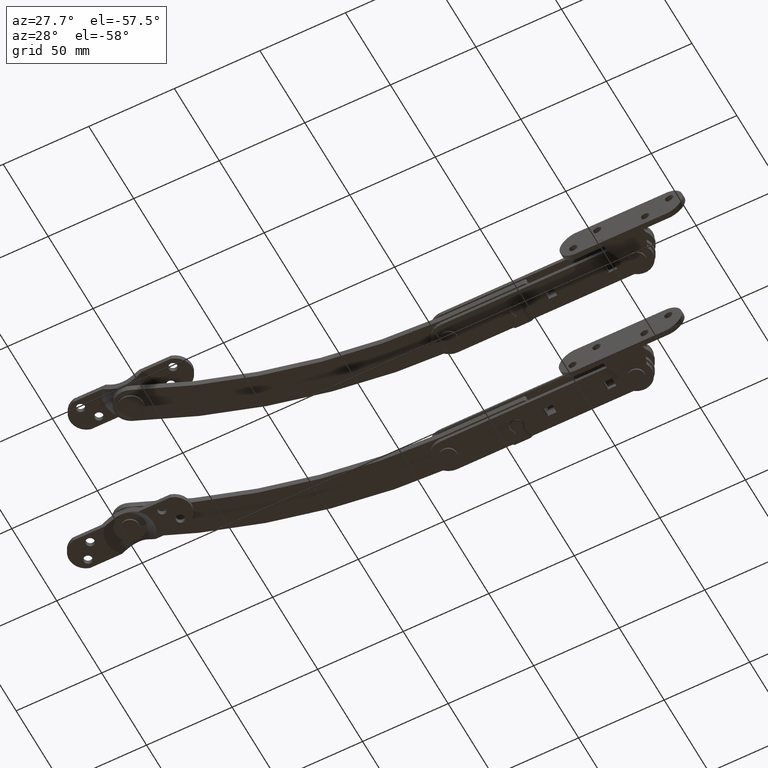
[diagram: clean part render]
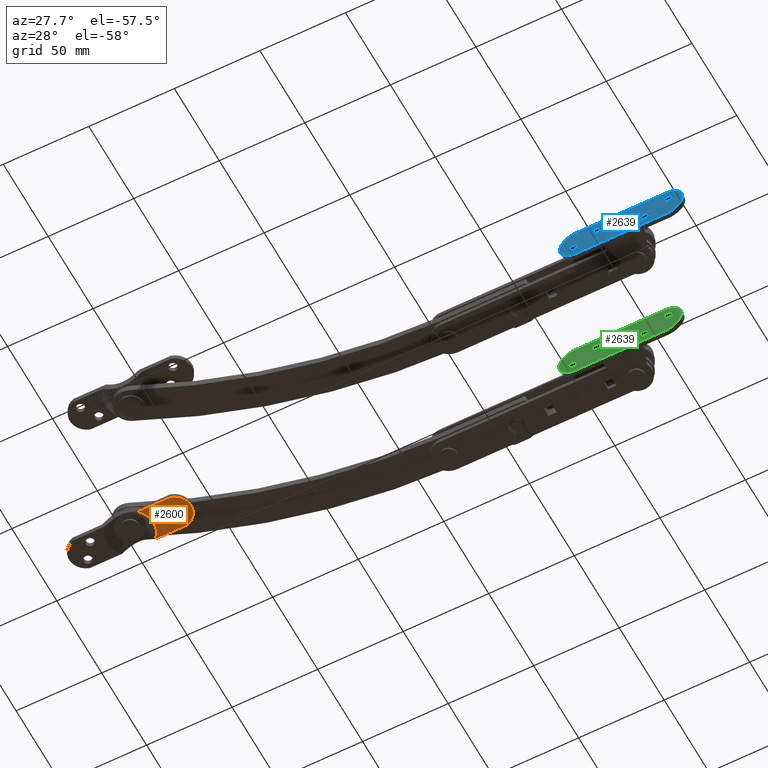
[diagram: same view with three faces highlighted in distinct colors, each labeled with its STEP entity id]
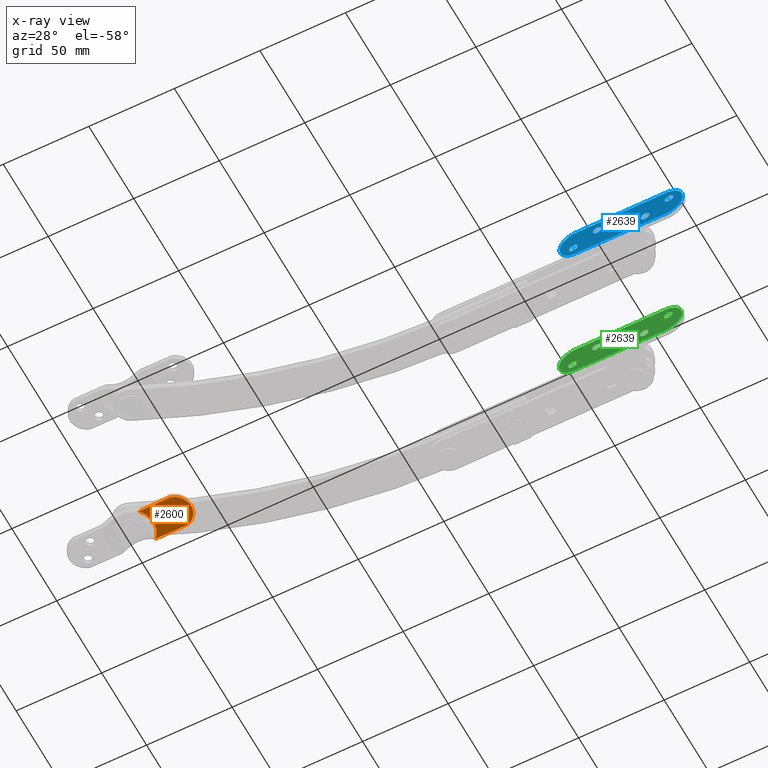
[diagram: x-ray of the same camera — body ghosted, the three highlighted faces saturated]
A machine part, auxiliary view with three faces highlighted in distinct colors.
The next image is the same camera in x-ray (body ghosted, the three faces saturated) — at least one of them is partly hidden behind the body in this view.
Their STEP definitions:

[orange] entity #2600 — the highlighted planar face has unit normal (0, -0, -1).
#207=FACE_BOUND('',#638,.T.);
#208=FACE_BOUND('',#639,.T.);
#317=PLANE('',#2840);
#446=FACE_OUTER_BOUND('',#637,.T.);
#637=EDGE_LOOP('',(#2232,#2233,#2234,#2235));
#638=EDGE_LOOP('',(#2236));
#639=EDGE_LOOP('',(#2237));
#850=LINE('',#4796,#1024);
#851=LINE('',#4799,#1025);
#1024=VECTOR('',#3444,18.6664894216499);
#1025=VECTOR('',#3447,18.6664894216499);
#1140=CIRCLE('',#2825,2.5);
#1142=CIRCLE('',#2828,2.5);
#1148=CIRCLE('',#2837,13.6728903416404);
#1150=CIRCLE('',#2841,9.86736111111111);
#1345=VERTEX_POINT('',#4758);
#1347=VERTEX_POINT('',#4763);
#1353=VERTEX_POINT('',#4777);
#1355=VERTEX_POINT('',#4783);
#1358=VERTEX_POINT('',#4795);
#1359=VERTEX_POINT('',#4797);
#1656=EDGE_CURVE('',#1345,#1345,#1140,.T.);
#1658=EDGE_CURVE('',#1347,#1347,#1142,.T.);
#1666=EDGE_CURVE('',#1353,#1355,#1148,.T.);
#1670=EDGE_CURVE('',#1358,#1355,#850,.T.);
#1671=EDGE_CURVE('',#1358,#1359,#1150,.T.);
#1672=EDGE_CURVE('',#1353,#1359,#851,.T.);
#2232=ORIENTED_EDGE('',*,*,#1666,.T.);
#2233=ORIENTED_EDGE('',*,*,#1670,.F.);
#2234=ORIENTED_EDGE('',*,*,#1671,.T.);
#2235=ORIENTED_EDGE('',*,*,#1672,.F.);
#2236=ORIENTED_EDGE('',*,*,#1656,.T.);
#2237=ORIENTED_EDGE('',*,*,#1658,.T.);
#2600=ADVANCED_FACE('',(#446,#207,#208),#317,.T.);
#2825=AXIS2_PLACEMENT_3D('',#4759,#3410,#3411);
#2828=AXIS2_PLACEMENT_3D('',#4764,#3416,#3417);
#2837=AXIS2_PLACEMENT_3D('',#4787,#3434,#3435);
#2840=AXIS2_PLACEMENT_3D('',#4794,#3442,#3443);
#2841=AXIS2_PLACEMENT_3D('',#4798,#3445,#3446);
#3410=DIRECTION('center_axis',(3.06161699786838E-16,0.,1.));
#3411=DIRECTION('ref_axis',(1.,0.,-5.2245789394125E-16));
#3416=DIRECTION('center_axis',(3.06161699786838E-16,0.,1.));
#3417=DIRECTION('ref_axis',(1.,0.,-5.2245789394125E-16));
#3434=DIRECTION('center_axis',(3.06161699786838E-16,0.,1.));
#3435=DIRECTION('ref_axis',(-1.,0.,0.));
#3442=DIRECTION('center_axis',(-3.06161699786838E-16,0.,-1.));
#3443=DIRECTION('ref_axis',(-1.,0.,3.06161699786838E-16));
#3444=DIRECTION('',(-1.,0.,3.06161699786838E-16));
#3445=DIRECTION('center_axis',(-3.06161699786838E-16,0.,-1.));
#3446=DIRECTION('ref_axis',(-0.27032162713773,-0.962770075304385,1.20046917800978E-16));
#3447=DIRECTION('',(1.,0.,-3.06161699786838E-16));
#4758=CARTESIAN_POINT('',(24.5,4.5,1.01879289318544E-14));
#4759=CARTESIAN_POINT('Origin',(27.,4.5,8.88178419700125E-15));
#4763=CARTESIAN_POINT('',(18.5,-4.5,1.01879289318544E-14));
#4764=CARTESIAN_POINT('Origin',(21.,-4.5,8.88178419700125E-15));
#4777=CARTESIAN_POINT('',(9.83351057835012,-9.5,2.22044604925031E-15));
#4783=CARTESIAN_POINT('',(9.83351057835012,9.5,3.33066907387547E-15));
#4787=CARTESIAN_POINT('Origin',(0.,0.,-4.44089209850063E-15));
#4794=CARTESIAN_POINT('Origin',(35.7,0.,-4.37198907295605E-15));
#4795=CARTESIAN_POINT('',(28.5,9.5,-2.16762483449082E-15));
#4796=CARTESIAN_POINT('',(-35.7,9.5,1.74879562918242E-14));
#4797=CARTESIAN_POINT('',(28.5,-9.5,-2.16762483449082E-15));
#4798=CARTESIAN_POINT('Origin',(25.8326388888889,2.22044604925031E-15,9.99952618251458E-18));
#4799=CARTESIAN_POINT('',(-35.7,-9.5,1.74879562918242E-14));

[blue] entity #2639 — the highlighted planar face has unit normal (0, -1, -0).
#232=FACE_BOUND('',#702,.T.);
#233=FACE_BOUND('',#703,.T.);
#234=FACE_BOUND('',#704,.T.);
#235=FACE_BOUND('',#705,.T.);
#339=PLANE('',#2913);
#485=FACE_OUTER_BOUND('',#701,.T.);
#701=EDGE_LOOP('',(#2413,#2414,#2415,#2416));
#702=EDGE_LOOP('',(#2417));
#703=EDGE_LOOP('',(#2418));
#704=EDGE_LOOP('',(#2419));
#705=EDGE_LOOP('',(#2420));
#872=LINE('',#4919,#1046);
#893=LINE('',#4971,#1067);
#1046=VECTOR('',#3564,55.);
#1067=VECTOR('',#3613,55.);
#1163=CIRCLE('',#2872,2.5);
#1165=CIRCLE('',#2875,2.5);
#1167=CIRCLE('',#2878,2.5);
#1169=CIRCLE('',#2881,2.5);
#1171=CIRCLE('',#2884,10.1323529411765);
#1173=CIRCLE('',#2887,10.1323529411765);
#1378=VERTEX_POINT('',#4870);
#1380=VERTEX_POINT('',#4875);
#1382=VERTEX_POINT('',#4880);
#1384=VERTEX_POINT('',#4885);
#1387=VERTEX_POINT('',#4891);
#1388=VERTEX_POINT('',#4893);
#1391=VERTEX_POINT('',#4900);
#1392=VERTEX_POINT('',#4902);
#1699=EDGE_CURVE('',#1378,#1378,#1163,.T.);
#1701=EDGE_CURVE('',#1380,#1380,#1165,.T.);
#1703=EDGE_CURVE('',#1382,#1382,#1167,.T.);
#1705=EDGE_CURVE('',#1384,#1384,#1169,.T.);
#1708=EDGE_CURVE('',#1388,#1387,#1171,.T.);
#1712=EDGE_CURVE('',#1392,#1391,#1173,.T.);
#1721=EDGE_CURVE('',#1392,#1387,#872,.T.);
#1747=EDGE_CURVE('',#1391,#1388,#893,.T.);
#2413=ORIENTED_EDGE('',*,*,#1708,.T.);
#2414=ORIENTED_EDGE('',*,*,#1721,.F.);
#2415=ORIENTED_EDGE('',*,*,#1712,.T.);
#2416=ORIENTED_EDGE('',*,*,#1747,.T.);
#2417=ORIENTED_EDGE('',*,*,#1699,.T.);
#2418=ORIENTED_EDGE('',*,*,#1701,.T.);
#2419=ORIENTED_EDGE('',*,*,#1703,.T.);
#2420=ORIENTED_EDGE('',*,*,#1705,.T.);
#2639=ADVANCED_FACE('',(#485,#232,#233,#234,#235),#339,.T.);
#2872=AXIS2_PLACEMENT_3D('',#4871,#3518,#3519);
#2875=AXIS2_PLACEMENT_3D('',#4876,#3524,#3525);
#2878=AXIS2_PLACEMENT_3D('',#4881,#3530,#3531);
#2881=AXIS2_PLACEMENT_3D('',#4886,#3536,#3537);
#2884=AXIS2_PLACEMENT_3D('',#4894,#3543,#3544);
#2887=AXIS2_PLACEMENT_3D('',#4903,#3551,#3552);
#2913=AXIS2_PLACEMENT_3D('',#4994,#3640,#3641);
#3518=DIRECTION('center_axis',(-1.83697019872103E-16,1.,0.));
#3519=DIRECTION('ref_axis',(1.,1.83697019872103E-16,0.));
#3524=DIRECTION('center_axis',(-1.83697019872103E-16,1.,0.));
#3525=DIRECTION('ref_axis',(1.,1.83697019872103E-16,0.));
#3530=DIRECTION('center_axis',(-1.83697019872103E-16,1.,0.));
#3531=DIRECTION('ref_axis',(1.,1.83697019872103E-16,0.));
#3536=DIRECTION('center_axis',(-1.83697019872103E-16,1.,0.));
#3537=DIRECTION('ref_axis',(1.,1.83697019872103E-16,0.));
#3543=DIRECTION('center_axis',(1.83697019872103E-16,-1.,0.));
#3544=DIRECTION('ref_axis',(-0.161103047895499,0.,-0.986937590711176));
#3551=DIRECTION('center_axis',(1.83697019872103E-16,-1.,0.));
#3552=DIRECTION('ref_axis',(0.161103047895501,0.,0.986937590711175));
#3564=DIRECTION('',(1.,1.83697019872103E-16,0.));
#3613=DIRECTION('',(1.,1.83697019872103E-16,0.));
#3640=DIRECTION('center_axis',(1.83697019872103E-16,-1.,0.));
#3641=DIRECTION('ref_axis',(1.,1.83697019872103E-16,0.));
#4870=CARTESIAN_POINT('',(16.5,9.64409354328541E-15,-3.5));
#4871=CARTESIAN_POINT('Origin',(14.,8.88178419700125E-15,-3.5));
#4875=CARTESIAN_POINT('',(-11.5,4.50057698686652E-15,3.5));
#4876=CARTESIAN_POINT('Origin',(-14.,0.,3.5));
#4880=CARTESIAN_POINT('',(30.5,1.22158518214949E-14,3.5));
#4881=CARTESIAN_POINT('Origin',(28.,8.88178419700125E-15,3.5));
#4885=CARTESIAN_POINT('',(-25.5,1.92881870865708E-15,-3.5));
#4886=CARTESIAN_POINT('Origin',(-28.,0.,-3.5));
#4891=CARTESIAN_POINT('',(27.5,7.21644966006352E-15,10.));
#4893=CARTESIAN_POINT('',(27.5,7.21644966006352E-15,-10.));
#4894=CARTESIAN_POINT('Origin',(25.8676470588235,0.,2.22044604925031E-15));
#4900=CARTESIAN_POINT('',(-27.5,-2.77555756156289E-15,-10.));
#4902=CARTESIAN_POINT('',(-27.5,-2.77555756156289E-15,10.));
#4903=CARTESIAN_POINT('Origin',(-25.8676470588235,0.,2.22044604925031E-15));
#4919=CARTESIAN_POINT('',(-36.,0.,10.));
#4971=CARTESIAN_POINT('',(-36.,0.,-10.));
#4994=CARTESIAN_POINT('Origin',(-36.,0.,0.));

[green] entity #2639 — the highlighted planar face has unit normal (-0, -1, -0).
#232=FACE_BOUND('',#702,.T.);
#233=FACE_BOUND('',#703,.T.);
#234=FACE_BOUND('',#704,.T.);
#235=FACE_BOUND('',#705,.T.);
#339=PLANE('',#2913);
#485=FACE_OUTER_BOUND('',#701,.T.);
#701=EDGE_LOOP('',(#2413,#2414,#2415,#2416));
#702=EDGE_LOOP('',(#2417));
#703=EDGE_LOOP('',(#2418));
#704=EDGE_LOOP('',(#2419));
#705=EDGE_LOOP('',(#2420));
#872=LINE('',#4919,#1046);
#893=LINE('',#4971,#1067);
#1046=VECTOR('',#3564,55.);
#1067=VECTOR('',#3613,55.);
#1163=CIRCLE('',#2872,2.5);
#1165=CIRCLE('',#2875,2.5);
#1167=CIRCLE('',#2878,2.5);
#1169=CIRCLE('',#2881,2.5);
#1171=CIRCLE('',#2884,10.1323529411765);
#1173=CIRCLE('',#2887,10.1323529411765);
#1378=VERTEX_POINT('',#4870);
#1380=VERTEX_POINT('',#4875);
#1382=VERTEX_POINT('',#4880);
#1384=VERTEX_POINT('',#4885);
#1387=VERTEX_POINT('',#4891);
#1388=VERTEX_POINT('',#4893);
#1391=VERTEX_POINT('',#4900);
#1392=VERTEX_POINT('',#4902);
#1699=EDGE_CURVE('',#1378,#1378,#1163,.T.);
#1701=EDGE_CURVE('',#1380,#1380,#1165,.T.);
#1703=EDGE_CURVE('',#1382,#1382,#1167,.T.);
#1705=EDGE_CURVE('',#1384,#1384,#1169,.T.);
#1708=EDGE_CURVE('',#1388,#1387,#1171,.T.);
#1712=EDGE_CURVE('',#1392,#1391,#1173,.T.);
#1721=EDGE_CURVE('',#1392,#1387,#872,.T.);
#1747=EDGE_CURVE('',#1391,#1388,#893,.T.);
#2413=ORIENTED_EDGE('',*,*,#1708,.T.);
#2414=ORIENTED_EDGE('',*,*,#1721,.F.);
#2415=ORIENTED_EDGE('',*,*,#1712,.T.);
#2416=ORIENTED_EDGE('',*,*,#1747,.T.);
#2417=ORIENTED_EDGE('',*,*,#1699,.T.);
#2418=ORIENTED_EDGE('',*,*,#1701,.T.);
#2419=ORIENTED_EDGE('',*,*,#1703,.T.);
#2420=ORIENTED_EDGE('',*,*,#1705,.T.);
#2639=ADVANCED_FACE('',(#485,#232,#233,#234,#235),#339,.T.);
#2872=AXIS2_PLACEMENT_3D('',#4871,#3518,#3519);
#2875=AXIS2_PLACEMENT_3D('',#4876,#3524,#3525);
#2878=AXIS2_PLACEMENT_3D('',#4881,#3530,#3531);
#2881=AXIS2_PLACEMENT_3D('',#4886,#3536,#3537);
#2884=AXIS2_PLACEMENT_3D('',#4894,#3543,#3544);
#2887=AXIS2_PLACEMENT_3D('',#4903,#3551,#3552);
#2913=AXIS2_PLACEMENT_3D('',#4994,#3640,#3641);
#3518=DIRECTION('center_axis',(-1.83697019872103E-16,1.,0.));
#3519=DIRECTION('ref_axis',(1.,1.83697019872103E-16,0.));
#3524=DIRECTION('center_axis',(-1.83697019872103E-16,1.,0.));
#3525=DIRECTION('ref_axis',(1.,1.83697019872103E-16,0.));
#3530=DIRECTION('center_axis',(-1.83697019872103E-16,1.,0.));
#3531=DIRECTION('ref_axis',(1.,1.83697019872103E-16,0.));
#3536=DIRECTION('center_axis',(-1.83697019872103E-16,1.,0.));
#3537=DIRECTION('ref_axis',(1.,1.83697019872103E-16,0.));
#3543=DIRECTION('center_axis',(1.83697019872103E-16,-1.,0.));
#3544=DIRECTION('ref_axis',(-0.161103047895499,0.,-0.986937590711176));
#3551=DIRECTION('center_axis',(1.83697019872103E-16,-1.,0.));
#3552=DIRECTION('ref_axis',(0.161103047895501,0.,0.986937590711175));
#3564=DIRECTION('',(1.,1.83697019872103E-16,0.));
#3613=DIRECTION('',(1.,1.83697019872103E-16,0.));
#3640=DIRECTION('center_axis',(1.83697019872103E-16,-1.,0.));
#3641=DIRECTION('ref_axis',(1.,1.83697019872103E-16,0.));
#4870=CARTESIAN_POINT('',(16.5,9.64409354328541E-15,-3.5));
#4871=CARTESIAN_POINT('Origin',(14.,8.88178419700125E-15,-3.5));
#4875=CARTESIAN_POINT('',(-11.5,4.50057698686652E-15,3.5));
#4876=CARTESIAN_POINT('Origin',(-14.,0.,3.5));
#4880=CARTESIAN_POINT('',(30.5,1.22158518214949E-14,3.5));
#4881=CARTESIAN_POINT('Origin',(28.,8.88178419700125E-15,3.5));
#4885=CARTESIAN_POINT('',(-25.5,1.92881870865708E-15,-3.5));
#4886=CARTESIAN_POINT('Origin',(-28.,0.,-3.5));
#4891=CARTESIAN_POINT('',(27.5,7.21644966006352E-15,10.));
#4893=CARTESIAN_POINT('',(27.5,7.21644966006352E-15,-10.));
#4894=CARTESIAN_POINT('Origin',(25.8676470588235,0.,2.22044604925031E-15));
#4900=CARTESIAN_POINT('',(-27.5,-2.77555756156289E-15,-10.));
#4902=CARTESIAN_POINT('',(-27.5,-2.77555756156289E-15,10.));
#4903=CARTESIAN_POINT('Origin',(-25.8676470588235,0.,2.22044604925031E-15));
#4919=CARTESIAN_POINT('',(-36.,0.,10.));
#4971=CARTESIAN_POINT('',(-36.,0.,-10.));
#4994=CARTESIAN_POINT('Origin',(-36.,0.,0.));